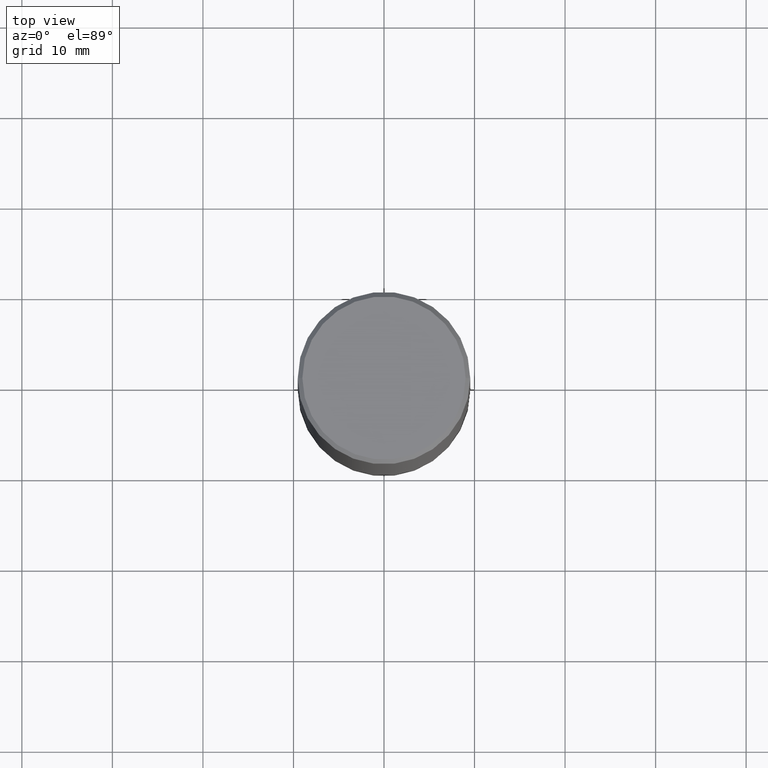
[diagram: clean part render]
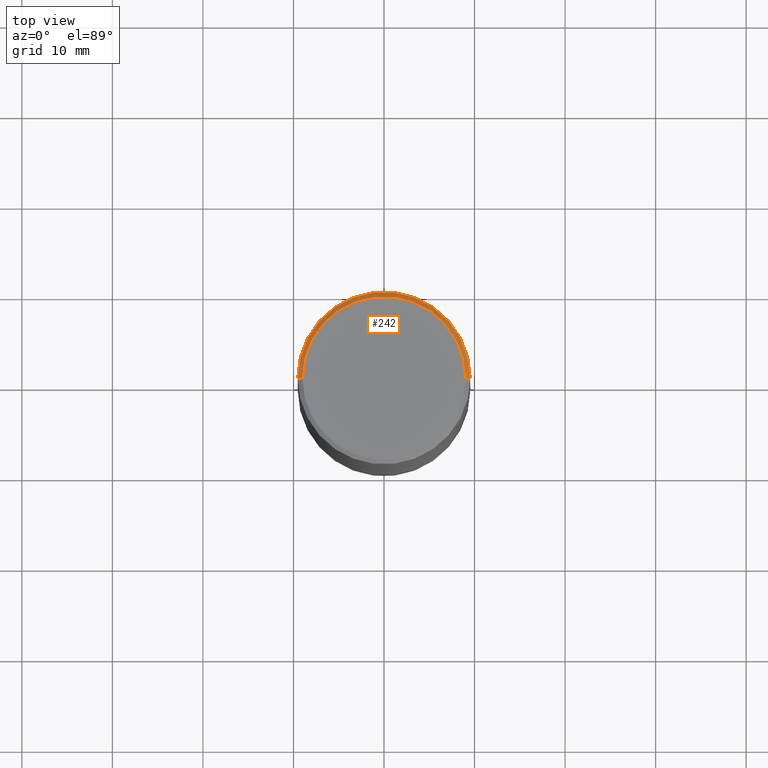
[diagram: same view with one face highlighted and labeled with its STEP entity id]
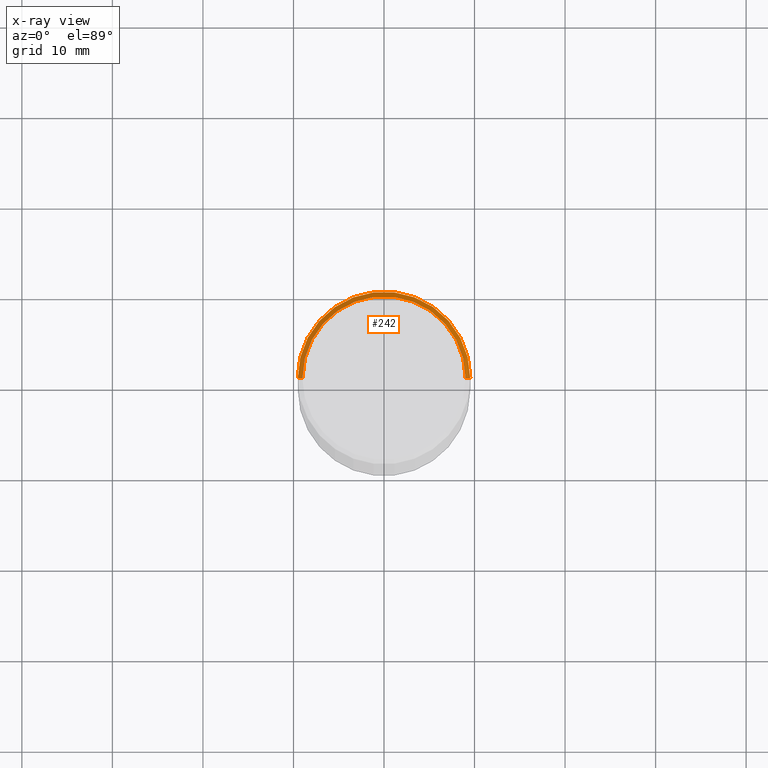
[diagram: x-ray of the same camera — body ghosted, the highlighted face saturated]
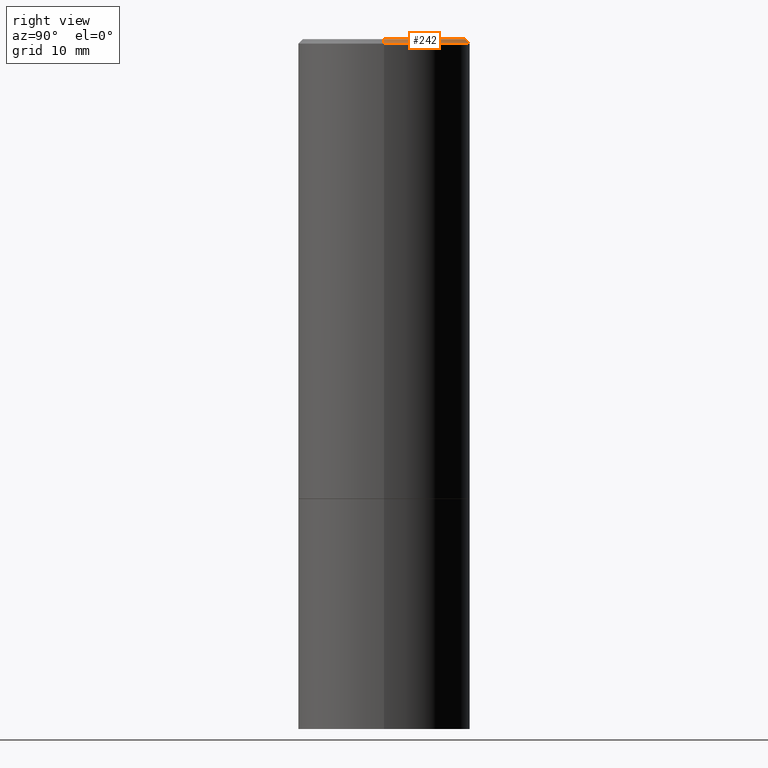
[diagram: same view with one face highlighted and labeled with its STEP entity id]
A machine part, top view. The second image highlights one B-rep face of the part: STEP entity #242.
The next image is the same camera in x-ray: the body ghosted, the highlighted face saturated — about 0% of this face is hidden behind the body in this view.
A second angle (right view) of the same face is appended — the face is thin or edge-on in the first view.
In plain terms, the highlighted conical surface has half-angle 45 deg.
Its self-contained STEP definition (entity closure, byte-faithful):
#11 = DIRECTION ( 'NONE',  ( 0.7071067811865472397, -7.319954787623254468E-15, -0.7071067811865477948 ) ) ;
#14 = DIRECTION ( 'NONE',  ( -2.445468806185136597E-29, 3.491481338843145583E-15, 1.000000000000000000 ) ) ;
#16 = ORIENTED_EDGE ( 'NONE', *, *, #123, .F. ) ;
#20 = ORIENTED_EDGE ( 'NONE', *, *, #199, .T. ) ;
#28 = CARTESIAN_POINT ( 'NONE',  ( 0.3749999999999996669, -2.642516375941185662E-15, -0.02000000000000007327 ) ) ;
#35 = LINE ( 'NONE', #356, #44 ) ;
#44 = VECTOR ( 'NONE', #11, 39.37007874015748143 ) ;
#46 = DIRECTION ( 'NONE',  ( 1.000000000000000000, -6.982962677686265922E-15, 4.876231632511992667E-29 ) ) ;
#74 = CARTESIAN_POINT ( 'NONE',  ( 4.890937612370290675E-31, -6.982962677686316261E-17, -0.02000000000000007327 ) ) ;
#86 = VECTOR ( 'NONE', #310, 39.37007874015748143 ) ;
#96 = CARTESIAN_POINT ( 'NONE',  ( -1.043851414335219820E-46, 1.490343170380447200E-32, 4.268512490100411279E-18 ) ) ;
#106 = CARTESIAN_POINT ( 'NONE',  ( 0.3549999999999996492, -2.538996582575038287E-15, 4.268512490117958041E-18 ) ) ;
#107 = VERTEX_POINT ( 'NONE', #255 ) ;
#110 = EDGE_CURVE ( 'NONE', #107, #172, #235, .T. ) ;
#123 = EDGE_CURVE ( 'NONE', #193, #107, #350, .T. ) ;
#133 = ORIENTED_EDGE ( 'NONE', *, *, #110, .F. ) ;
#146 = FACE_OUTER_BOUND ( 'NONE', #157, .T. ) ;
#157 = EDGE_LOOP ( 'NONE', ( #16, #189, #20, #133 ) ) ;
#164 = DIRECTION ( 'NONE',  ( 1.000000000000000000, -6.982962677686266711E-15, 0.000000000000000000 ) ) ;
#169 = DIRECTION ( 'NONE',  ( 2.445468806185136597E-29, -3.491481338843145583E-15, -1.000000000000000000 ) ) ;
#170 = CIRCLE ( 'NONE', #178, 0.3749999999999996669 ) ;
#172 = VERTEX_POINT ( 'NONE', #324 ) ;
#173 = EDGE_CURVE ( 'NONE', #193, #306, #35, .T. ) ;
#178 = AXIS2_PLACEMENT_3D ( 'NONE', #74, #191, #164 ) ;
#189 = ORIENTED_EDGE ( 'NONE', *, *, #173, .T. ) ;
#191 = DIRECTION ( 'NONE',  ( -2.445468806185136597E-29, 3.491481338843145583E-15, 1.000000000000000000 ) ) ;
#193 = VERTEX_POINT ( 'NONE', #106 ) ;
#199 = EDGE_CURVE ( 'NONE', #306, #172, #170, .T. ) ;
#223 = DIRECTION ( 'NONE',  ( -1.000000000000000000, 6.982962677686266711E-15, 0.000000000000000000 ) ) ;
#226 = CONICAL_SURFACE ( 'NONE', #300, 0.3749999999999996669, 0.7853981633974479459 ) ;
#235 = LINE ( 'NONE', #346, #86 ) ;
#242 = ADVANCED_FACE ( 'NONE', ( #146 ), #226, .T. ) ;
#255 = CARTESIAN_POINT ( 'NONE',  ( -0.3549999999999996492, 2.513866563967053097E-15, 4.268512490082953109E-18 ) ) ;
#300 = AXIS2_PLACEMENT_3D ( 'NONE', #336, #169, #223 ) ;
#306 = VERTEX_POINT ( 'NONE', #28 ) ;
#310 = DIRECTION ( 'NONE',  ( -0.7071067811865472397, 2.468850131082253905E-15, -0.7071067811865477948 ) ) ;
#324 = CARTESIAN_POINT ( 'NONE',  ( -0.3749999999999996669, 2.548781377355484352E-15, -0.02000000000000007327 ) ) ;
#336 = CARTESIAN_POINT ( 'NONE',  ( 4.890937612370290675E-31, -6.982962677686316261E-17, -0.02000000000000007327 ) ) ;
#339 = AXIS2_PLACEMENT_3D ( 'NONE', #96, #14, #46 ) ;
#346 = CARTESIAN_POINT ( 'NONE',  ( -0.3749999999999996669, 2.548781377355484352E-15, -0.02000000000000007327 ) ) ;
#350 = CIRCLE ( 'NONE', #339, 0.3549999999999996492 ) ;
#356 = CARTESIAN_POINT ( 'NONE',  ( 0.3749999999999996669, -2.642516375941185662E-15, -0.02000000000000007327 ) ) ;